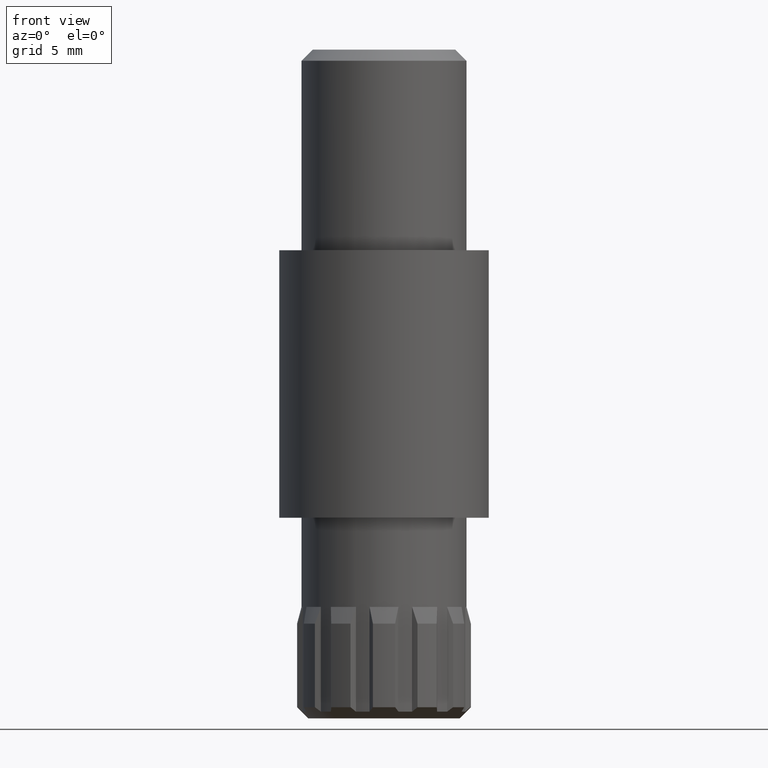
[diagram: clean part render]
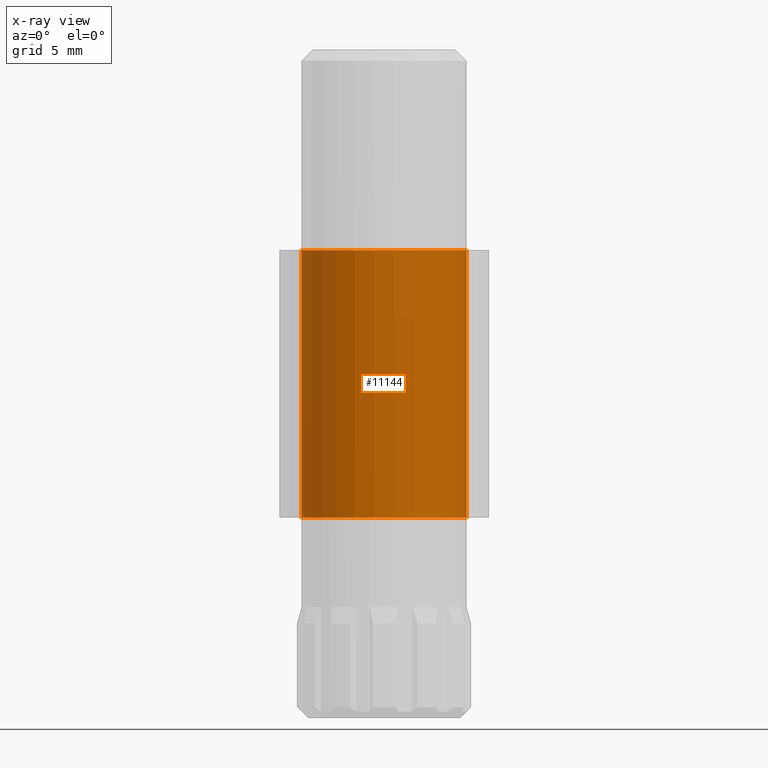
[diagram: x-ray — body ghosted, one internal face saturated and labeled with its STEP entity id]
A machine part, front view, then the same camera in x-ray: the body is ghosted and one INTERNAL B-rep face — a face not visible from any outside direction — is saturated and labeled: STEP entity #11144.
In plain terms, the highlighted cylindrical surface (partial cylindrical patch) has radius 3.7 mm, axis along (-0, -0, -1).
Its self-contained STEP definition (entity closure, byte-faithful):
#228 = EDGE_CURVE ( 'NONE', #3505, #3837, #7777, .T. ) ;
#447 = DIRECTION ( 'NONE',  ( -1.000000000000000000, 0.0000000000000000000, 0.0000000000000000000 ) ) ;
#656 = FACE_OUTER_BOUND ( 'NONE', #7935, .T. ) ;
#1309 = CARTESIAN_POINT ( 'NONE',  ( -3.700000000000000200, 0.0000000000000000000, 0.0000000000000000000 ) ) ;
#2475 = CARTESIAN_POINT ( 'NONE',  ( -3.700000000000000200, 0.0000000000000000000, 12.00000000000000000 ) ) ;
#3505 = VERTEX_POINT ( 'NONE', #7006 ) ;
#3837 = VERTEX_POINT ( 'NONE', #6914 ) ;
#4919 = VECTOR ( 'NONE', #9821, 1000.000000000000000 ) ;
#5341 = DIRECTION ( 'NONE',  ( 0.0000000000000000000, 0.0000000000000000000, 1.000000000000000000 ) ) ;
#5885 = CYLINDRICAL_SURFACE ( 'NONE', #8912, 3.700000000000000200 ) ;
#6914 = CARTESIAN_POINT ( 'NONE',  ( 3.700000000000000200, 4.531193156845206200E-016, 12.00000000000000000 ) ) ;
#7006 = CARTESIAN_POINT ( 'NONE',  ( -3.700000000000000200, 0.0000000000000000000, 12.00000000000000000 ) ) ;
#7709 = EDGE_CURVE ( 'NONE', #9260, #8030, #9445, .T. ) ;
#7777 = CIRCLE ( 'NONE', #9998, 3.700000000000000200 ) ;
#7935 = EDGE_LOOP ( 'NONE', ( #9220, #12759, #11643, #10481 ) ) ;
#8030 = VERTEX_POINT ( 'NONE', #12831 ) ;
#8899 = DIRECTION ( 'NONE',  ( -0.0000000000000000000, -0.0000000000000000000, -1.000000000000000000 ) ) ;
#8912 = AXIS2_PLACEMENT_3D ( 'NONE', #10075, #8899, #447 ) ;
#9220 = ORIENTED_EDGE ( 'NONE', *, *, #228, .T. ) ;
#9260 = VERTEX_POINT ( 'NONE', #1309 ) ;
#9445 = CIRCLE ( 'NONE', #10028, 3.700000000000000200 ) ;
#9743 = EDGE_CURVE ( 'NONE', #3837, #8030, #10562, .T. ) ;
#9821 = DIRECTION ( 'NONE',  ( -0.0000000000000000000, -0.0000000000000000000, -1.000000000000000000 ) ) ;
#9998 = AXIS2_PLACEMENT_3D ( 'NONE', #10359, #12567, #10492 ) ;
#10028 = AXIS2_PLACEMENT_3D ( 'NONE', #11681, #5341, #12736 ) ;
#10075 = CARTESIAN_POINT ( 'NONE',  ( 0.0000000000000000000, 0.0000000000000000000, 12.00000000000000000 ) ) ;
#10079 = EDGE_CURVE ( 'NONE', #3505, #9260, #13535, .T. ) ;
#10359 = CARTESIAN_POINT ( 'NONE',  ( 0.0000000000000000000, 0.0000000000000000000, 12.00000000000000000 ) ) ;
#10481 = ORIENTED_EDGE ( 'NONE', *, *, #10079, .F. ) ;
#10492 = DIRECTION ( 'NONE',  ( 1.000000000000000000, 0.0000000000000000000, 0.0000000000000000000 ) ) ;
#10562 = LINE ( 'NONE', #10866, #4919 ) ;
#10724 = VECTOR ( 'NONE', #10914, 1000.000000000000000 ) ;
#10866 = CARTESIAN_POINT ( 'NONE',  ( 3.700000000000000200, 4.531193156845206200E-016, 12.00000000000000000 ) ) ;
#10914 = DIRECTION ( 'NONE',  ( -0.0000000000000000000, -0.0000000000000000000, -1.000000000000000000 ) ) ;
#11144 = ADVANCED_FACE ( 'NONE', ( #656 ), #5885, .F. ) ;
#11643 = ORIENTED_EDGE ( 'NONE', *, *, #7709, .F. ) ;
#11681 = CARTESIAN_POINT ( 'NONE',  ( 0.0000000000000000000, 0.0000000000000000000, 0.0000000000000000000 ) ) ;
#12567 = DIRECTION ( 'NONE',  ( 0.0000000000000000000, 0.0000000000000000000, 1.000000000000000000 ) ) ;
#12736 = DIRECTION ( 'NONE',  ( 1.000000000000000000, 0.0000000000000000000, 0.0000000000000000000 ) ) ;
#12759 = ORIENTED_EDGE ( 'NONE', *, *, #9743, .T. ) ;
#12831 = CARTESIAN_POINT ( 'NONE',  ( 3.700000000000000200, 4.531193156845206200E-016, 0.0000000000000000000 ) ) ;
#13535 = LINE ( 'NONE', #2475, #10724 ) ;